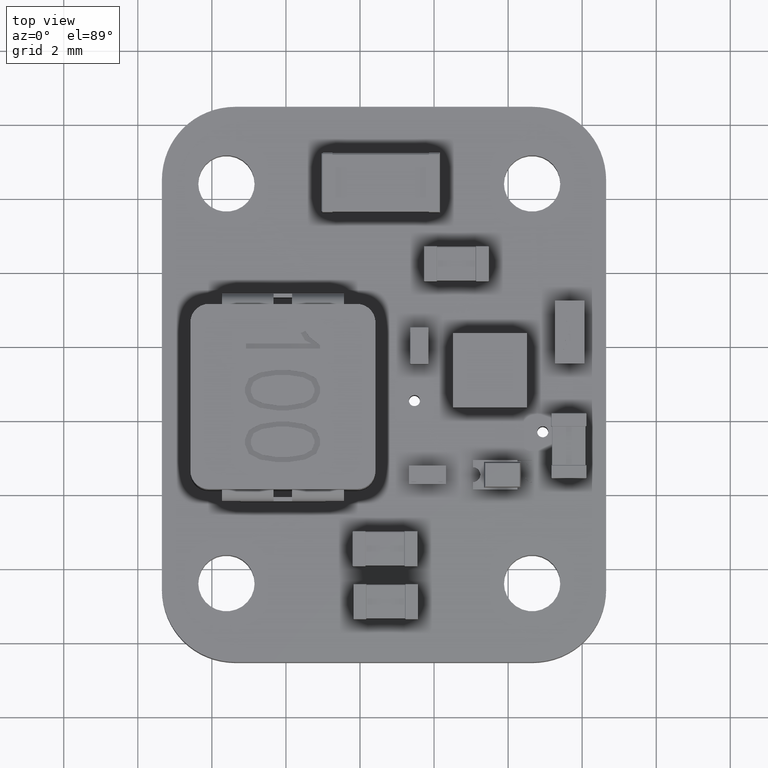
[diagram: clean part render]
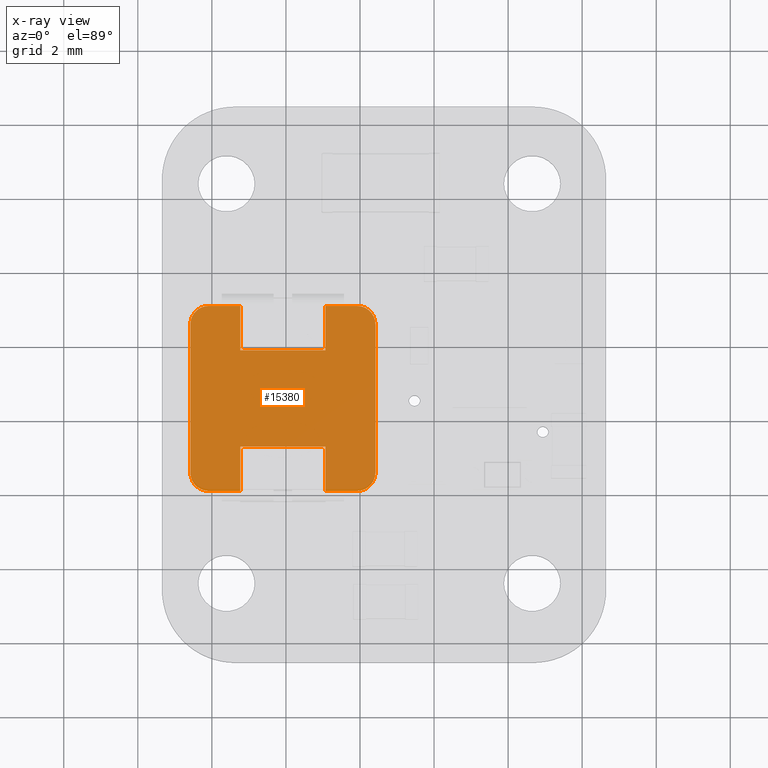
[diagram: x-ray — body ghosted, one internal face saturated and labeled with its STEP entity id]
A machine part, top view, then the same camera in x-ray: the body is ghosted and one INTERNAL B-rep face — a face not visible from any outside direction — is saturated and labeled: STEP entity #15380.
In plain terms, the highlighted planar face has unit normal (-0, 0, 1).
Its self-contained STEP definition (entity closure, byte-faithful):
#14471 = VERTEX_POINT('',#14472);
#14472 = CARTESIAN_POINT('',(-5.421010862428E-17,0.,-0.5));
#14478 = EDGE_CURVE('',#14471,#14479,#14481,.T.);
#14479 = VERTEX_POINT('',#14480);
#14480 = CARTESIAN_POINT('',(-1.010476424756E-16,-8.673617379884E-16,
    -1.35));
#14481 = LINE('',#14482,#14483);
#14482 = CARTESIAN_POINT('',(0.,0.,-2.5));
#14483 = VECTOR('',#14484,1.);
#14484 = DIRECTION('',(-0.,0.,-1.));
#14487 = VERTEX_POINT('',#14488);
#14488 = CARTESIAN_POINT('',(-1.234038912723E-15,0.,-3.65));
#14494 = EDGE_CURVE('',#14487,#14495,#14497,.T.);
#14495 = VERTEX_POINT('',#14496);
#14496 = CARTESIAN_POINT('',(-1.355252715607E-15,0.,-4.5));
#14497 = LINE('',#14498,#14499);
#14498 = CARTESIAN_POINT('',(-1.301042606983E-15,0.,-2.5));
#14499 = VECTOR('',#14500,1.);
#14500 = DIRECTION('',(-0.,0.,-1.));
#14519 = VERTEX_POINT('',#14520);
#14520 = CARTESIAN_POINT('',(-4.5,0.,9.73613550892E-16));
#14526 = EDGE_CURVE('',#14519,#14527,#14529,.T.);
#14527 = VERTEX_POINT('',#14528);
#14528 = CARTESIAN_POINT('',(-0.5,0.,1.235990476633E-16));
#14529 = LINE('',#14530,#14531);
#14530 = CARTESIAN_POINT('',(-4.5,0.,9.71445146547E-16));
#14531 = VECTOR('',#14532,1.);
#14532 = DIRECTION('',(1.,0.,-2.081668171172E-16));
#14617 = VERTEX_POINT('',#14618);
#14618 = CARTESIAN_POINT('',(-5.,0.,-4.5));
#14624 = EDGE_CURVE('',#14617,#14625,#14627,.T.);
#14625 = VERTEX_POINT('',#14626);
#14626 = CARTESIAN_POINT('',(-5.,0.,-3.65));
#14627 = LINE('',#14628,#14629);
#14628 = CARTESIAN_POINT('',(-5.,0.,-4.5));
#14629 = VECTOR('',#14630,1.);
#14630 = DIRECTION('',(8.326672684689E-16,0.,1.));
#14633 = VERTEX_POINT('',#14634);
#14634 = CARTESIAN_POINT('',(-5.,0.,-1.35));
#14640 = EDGE_CURVE('',#14633,#14641,#14643,.T.);
#14641 = VERTEX_POINT('',#14642);
#14642 = CARTESIAN_POINT('',(-5.,0.,-0.5));
#14643 = LINE('',#14644,#14645);
#14644 = CARTESIAN_POINT('',(-5.,0.,-4.5));
#14645 = VECTOR('',#14646,1.);
#14646 = DIRECTION('',(8.326672684689E-16,0.,1.));
#14665 = VERTEX_POINT('',#14666);
#14666 = CARTESIAN_POINT('',(-0.5,0.,-5.));
#14672 = EDGE_CURVE('',#14665,#14673,#14675,.T.);
#14673 = VERTEX_POINT('',#14674);
#14674 = CARTESIAN_POINT('',(-4.5,0.,-5.));
#14675 = LINE('',#14676,#14677);
#14676 = CARTESIAN_POINT('',(-0.5,0.,-5.));
#14677 = VECTOR('',#14678,1.);
#14678 = DIRECTION('',(-1.,0.,4.163336342344E-16));
#15301 = EDGE_CURVE('',#14527,#14471,#15302,.T.);
#15302 = CIRCLE('',#15303,0.5);
#15303 = AXIS2_PLACEMENT_3D('',#15304,#15305,#15306);
#15304 = CARTESIAN_POINT('',(-0.5,0.,-0.5));
#15305 = DIRECTION('',(0.,1.,0.));
#15306 = DIRECTION('',(0.,-0.,1.));
#15319 = EDGE_CURVE('',#14495,#14665,#15320,.T.);
#15320 = CIRCLE('',#15321,0.5);
#15321 = AXIS2_PLACEMENT_3D('',#15322,#15323,#15324);
#15322 = CARTESIAN_POINT('',(-0.5,0.,-4.5));
#15323 = DIRECTION('',(0.,1.,0.));
#15324 = DIRECTION('',(0.,-0.,1.));
#15368 = EDGE_CURVE('',#14641,#14519,#15369,.T.);
#15369 = CIRCLE('',#15370,0.5);
#15370 = AXIS2_PLACEMENT_3D('',#15371,#15372,#15373);
#15371 = CARTESIAN_POINT('',(-4.5,0.,-0.5));
#15372 = DIRECTION('',(0.,1.,0.));
#15373 = DIRECTION('',(0.,-0.,1.));
#15380 = ADVANCED_FACE('',(#15381),#15443,.F.);
#15381 = FACE_BOUND('',#15382,.T.);
#15382 = EDGE_LOOP('',(#15383,#15393,#15399,#15400,#15401,#15402,#15403,
    #15404,#15412,#15420,#15426,#15427,#15434,#15435,#15436,#15437));
#15383 = ORIENTED_EDGE('',*,*,#15384,.F.);
#15384 = EDGE_CURVE('',#15385,#15387,#15389,.T.);
#15385 = VERTEX_POINT('',#15386);
#15386 = CARTESIAN_POINT('',(-1.2,-8.605854744104E-16,-1.35));
#15387 = VERTEX_POINT('',#15388);
#15388 = CARTESIAN_POINT('',(-1.2,-2.564815764286E-15,-3.65));
#15389 = LINE('',#15390,#15391);
#15390 = CARTESIAN_POINT('',(-1.2,0.,-2.5));
#15391 = VECTOR('',#15392,1.);
#15392 = DIRECTION('',(-0.,0.,-1.));
#15393 = ORIENTED_EDGE('',*,*,#15394,.F.);
#15394 = EDGE_CURVE('',#14479,#15385,#15395,.T.);
#15395 = LINE('',#15396,#15397);
#15396 = CARTESIAN_POINT('',(-2.5,0.,-1.35));
#15397 = VECTOR('',#15398,1.);
#15398 = DIRECTION('',(-1.,-0.,0.));
#15399 = ORIENTED_EDGE('',*,*,#14478,.F.);
#15400 = ORIENTED_EDGE('',*,*,#15301,.F.);
#15401 = ORIENTED_EDGE('',*,*,#14526,.F.);
#15402 = ORIENTED_EDGE('',*,*,#15368,.F.);
#15403 = ORIENTED_EDGE('',*,*,#14640,.F.);
#15404 = ORIENTED_EDGE('',*,*,#15405,.F.);
#15405 = EDGE_CURVE('',#15406,#14633,#15408,.T.);
#15406 = VERTEX_POINT('',#15407);
#15407 = CARTESIAN_POINT('',(-3.8,0.,-1.35));
#15408 = LINE('',#15409,#15410);
#15409 = CARTESIAN_POINT('',(-2.5,0.,-1.35));
#15410 = VECTOR('',#15411,1.);
#15411 = DIRECTION('',(-1.,-0.,0.));
#15412 = ORIENTED_EDGE('',*,*,#15413,.F.);
#15413 = EDGE_CURVE('',#15414,#15406,#15416,.T.);
#15414 = VERTEX_POINT('',#15415);
#15415 = CARTESIAN_POINT('',(-3.8,0.,-3.65));
#15416 = LINE('',#15417,#15418);
#15417 = CARTESIAN_POINT('',(-3.8,0.,-2.5));
#15418 = VECTOR('',#15419,1.);
#15419 = DIRECTION('',(0.,-0.,1.));
#15420 = ORIENTED_EDGE('',*,*,#15421,.F.);
#15421 = EDGE_CURVE('',#14625,#15414,#15422,.T.);
#15422 = LINE('',#15423,#15424);
#15423 = CARTESIAN_POINT('',(-2.5,0.,-3.65));
#15424 = VECTOR('',#15425,1.);
#15425 = DIRECTION('',(1.,0.,-0.));
#15426 = ORIENTED_EDGE('',*,*,#14624,.F.);
#15427 = ORIENTED_EDGE('',*,*,#15428,.F.);
#15428 = EDGE_CURVE('',#14673,#14617,#15429,.T.);
#15429 = CIRCLE('',#15430,0.5);
#15430 = AXIS2_PLACEMENT_3D('',#15431,#15432,#15433);
#15431 = CARTESIAN_POINT('',(-4.5,0.,-4.5));
#15432 = DIRECTION('',(0.,1.,0.));
#15433 = DIRECTION('',(0.,-0.,1.));
#15434 = ORIENTED_EDGE('',*,*,#14672,.F.);
#15435 = ORIENTED_EDGE('',*,*,#15319,.F.);
#15436 = ORIENTED_EDGE('',*,*,#14494,.F.);
#15437 = ORIENTED_EDGE('',*,*,#15438,.F.);
#15438 = EDGE_CURVE('',#15387,#14487,#15439,.T.);
#15439 = LINE('',#15440,#15441);
#15440 = CARTESIAN_POINT('',(-2.5,0.,-3.65));
#15441 = VECTOR('',#15442,1.);
#15442 = DIRECTION('',(1.,0.,-0.));
#15443 = PLANE('',#15444);
#15444 = AXIS2_PLACEMENT_3D('',#15445,#15446,#15447);
#15445 = CARTESIAN_POINT('',(-2.5,0.,-2.5));
#15446 = DIRECTION('',(0.,1.,0.));
#15447 = DIRECTION('',(0.,-0.,1.));